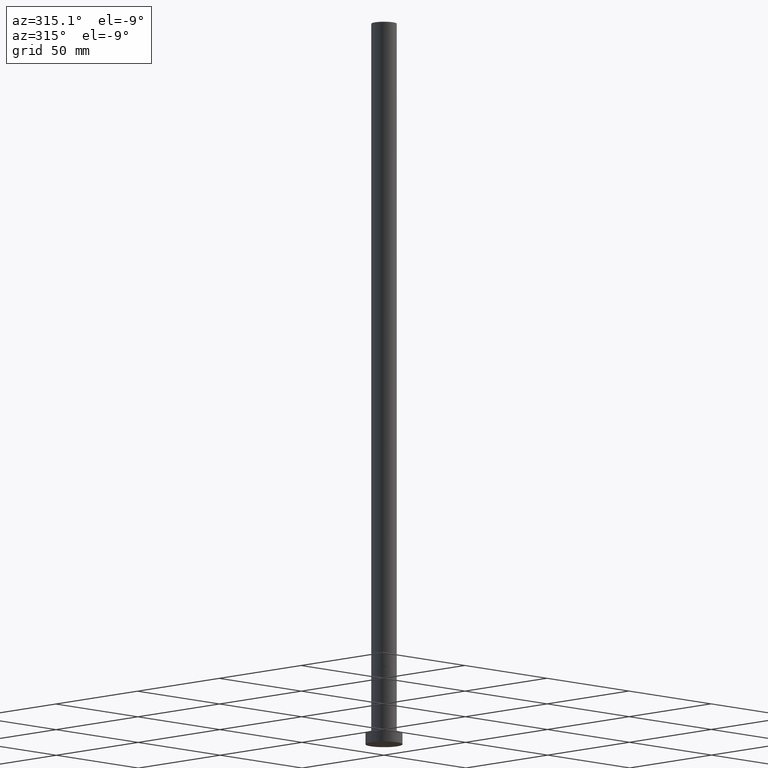
[diagram: clean part render]
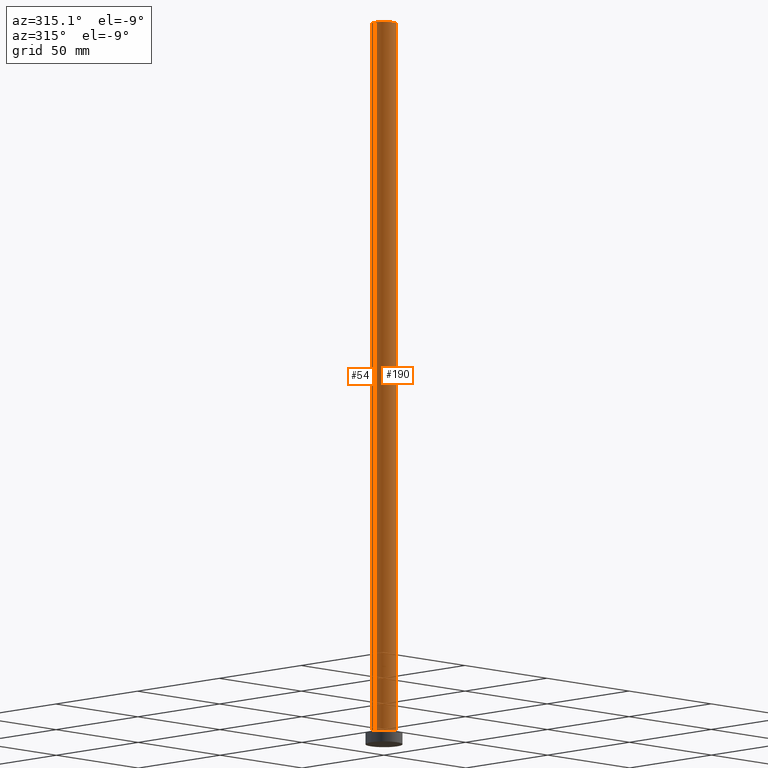
[diagram: same view with one multi-face feature highlighted, each face labeled with its STEP entity id]
A machine part, auxiliary view. The highlighted faces form ONE feature: a constant-radius fillet chain: 2 tangent blend faces with common blend radius 5.5 mm. The faces share edges in the B-rep.
Their STEP definitions:
[1] entity #54 (Cylinder):
#2 = CIRCLE ( 'NONE', #41, 5.500000000000000000 ) ;
#17 = ORIENTED_EDGE ( 'NONE', *, *, #199, .F. ) ;
#19 = LINE ( 'NONE', #161, #21 ) ;
#20 = CIRCLE ( 'NONE', #143, 5.500000000000000000 ) ;
#21 = VECTOR ( 'NONE', #131, 1000.000000000000000 ) ;
#41 = AXIS2_PLACEMENT_3D ( 'NONE', #59, #140, #210 ) ;
#42 = LINE ( 'NONE', #89, #128 ) ;
#44 = CARTESIAN_POINT ( 'NONE',  ( -5.500000000000000000, 0.000000000000000000, 315.0000000000000000 ) ) ;
#51 = EDGE_LOOP ( 'NONE', ( #100, #82, #249, #17 ) ) ;
#54 = ADVANCED_FACE ( 'NONE', ( #97 ), #197, .T. ) ;
#59 = CARTESIAN_POINT ( 'NONE',  ( 0.000000000000000000, 0.000000000000000000, 5.000000000000000000 ) ) ;
#82 = ORIENTED_EDGE ( 'NONE', *, *, #227, .T. ) ;
#89 = CARTESIAN_POINT ( 'NONE',  ( 5.500000000000000000, 6.735557395310442023E-16, 315.0000000000000000 ) ) ;
#97 = FACE_OUTER_BOUND ( 'NONE', #51, .T. ) ;
#100 = ORIENTED_EDGE ( 'NONE', *, *, #184, .F. ) ;
#103 = CARTESIAN_POINT ( 'NONE',  ( 0.000000000000000000, 0.000000000000000000, 315.0000000000000000 ) ) ;
#113 = CARTESIAN_POINT ( 'NONE',  ( 5.500000000000000000, 6.735557395310442023E-16, 315.0000000000000000 ) ) ;
#122 = DIRECTION ( 'NONE',  ( -1.000000000000000000, 0.000000000000000000, 0.000000000000000000 ) ) ;
#126 = CARTESIAN_POINT ( 'NONE',  ( 5.500000000000000000, 6.735557395310442023E-16, 5.000000000000000000 ) ) ;
#128 = VECTOR ( 'NONE', #222, 1000.000000000000000 ) ;
#131 = DIRECTION ( 'NONE',  ( -0.000000000000000000, -0.000000000000000000, -1.000000000000000000 ) ) ;
#140 = DIRECTION ( 'NONE',  ( 0.000000000000000000, 0.000000000000000000, 1.000000000000000000 ) ) ;
#142 = EDGE_CURVE ( 'NONE', #148, #240, #2, .T. ) ;
#143 = AXIS2_PLACEMENT_3D ( 'NONE', #103, #177, #178 ) ;
#148 = VERTEX_POINT ( 'NONE', #126 ) ;
#156 = CARTESIAN_POINT ( 'NONE',  ( 0.000000000000000000, 0.000000000000000000, 315.0000000000000000 ) ) ;
#161 = CARTESIAN_POINT ( 'NONE',  ( -5.500000000000000000, 0.000000000000000000, 315.0000000000000000 ) ) ;
#175 = DIRECTION ( 'NONE',  ( -0.000000000000000000, -0.000000000000000000, -1.000000000000000000 ) ) ;
#177 = DIRECTION ( 'NONE',  ( 0.000000000000000000, 0.000000000000000000, 1.000000000000000000 ) ) ;
#178 = DIRECTION ( 'NONE',  ( 1.000000000000000000, 0.000000000000000000, 0.000000000000000000 ) ) ;
#184 = EDGE_CURVE ( 'NONE', #202, #231, #20, .T. ) ;
#185 = AXIS2_PLACEMENT_3D ( 'NONE', #156, #175, #122 ) ;
#197 = CYLINDRICAL_SURFACE ( 'NONE', #185, 5.500000000000000000 ) ;
#199 = EDGE_CURVE ( 'NONE', #231, #240, #19, .T. ) ;
#202 = VERTEX_POINT ( 'NONE', #113 ) ;
#210 = DIRECTION ( 'NONE',  ( 1.000000000000000000, 0.000000000000000000, 0.000000000000000000 ) ) ;
#222 = DIRECTION ( 'NONE',  ( -0.000000000000000000, -0.000000000000000000, -1.000000000000000000 ) ) ;
#227 = EDGE_CURVE ( 'NONE', #202, #148, #42, .T. ) ;
#231 = VERTEX_POINT ( 'NONE', #44 ) ;
#240 = VERTEX_POINT ( 'NONE', #246 ) ;
#246 = CARTESIAN_POINT ( 'NONE',  ( -5.500000000000000000, 0.000000000000000000, 5.000000000000000000 ) ) ;
#249 = ORIENTED_EDGE ( 'NONE', *, *, #142, .T. ) ;
[2] entity #190 (Cylinder):
#15 = DIRECTION ( 'NONE',  ( 1.000000000000000000, 0.000000000000000000, 0.000000000000000000 ) ) ;
#19 = LINE ( 'NONE', #161, #21 ) ;
#21 = VECTOR ( 'NONE', #131, 1000.000000000000000 ) ;
#22 = DIRECTION ( 'NONE',  ( -1.000000000000000000, 0.000000000000000000, 0.000000000000000000 ) ) ;
#24 = EDGE_CURVE ( 'NONE', #231, #202, #130, .T. ) ;
#25 = ORIENTED_EDGE ( 'NONE', *, *, #57, .T. ) ;
#26 = CARTESIAN_POINT ( 'NONE',  ( 0.000000000000000000, 0.000000000000000000, 315.0000000000000000 ) ) ;
#37 = AXIS2_PLACEMENT_3D ( 'NONE', #26, #129, #47 ) ;
#42 = LINE ( 'NONE', #89, #128 ) ;
#44 = CARTESIAN_POINT ( 'NONE',  ( -5.500000000000000000, 0.000000000000000000, 315.0000000000000000 ) ) ;
#47 = DIRECTION ( 'NONE',  ( 1.000000000000000000, 0.000000000000000000, 0.000000000000000000 ) ) ;
#57 = EDGE_CURVE ( 'NONE', #240, #148, #203, .T. ) ;
#68 = CYLINDRICAL_SURFACE ( 'NONE', #213, 5.500000000000000000 ) ;
#71 = FACE_OUTER_BOUND ( 'NONE', #114, .T. ) ;
#72 = ORIENTED_EDGE ( 'NONE', *, *, #24, .F. ) ;
#89 = CARTESIAN_POINT ( 'NONE',  ( 5.500000000000000000, 6.735557395310442023E-16, 315.0000000000000000 ) ) ;
#106 = AXIS2_PLACEMENT_3D ( 'NONE', #252, #195, #15 ) ;
#113 = CARTESIAN_POINT ( 'NONE',  ( 5.500000000000000000, 6.735557395310442023E-16, 315.0000000000000000 ) ) ;
#114 = EDGE_LOOP ( 'NONE', ( #151, #72, #170, #25 ) ) ;
#126 = CARTESIAN_POINT ( 'NONE',  ( 5.500000000000000000, 6.735557395310442023E-16, 5.000000000000000000 ) ) ;
#128 = VECTOR ( 'NONE', #222, 1000.000000000000000 ) ;
#129 = DIRECTION ( 'NONE',  ( 0.000000000000000000, 0.000000000000000000, 1.000000000000000000 ) ) ;
#130 = CIRCLE ( 'NONE', #37, 5.500000000000000000 ) ;
#131 = DIRECTION ( 'NONE',  ( -0.000000000000000000, -0.000000000000000000, -1.000000000000000000 ) ) ;
#148 = VERTEX_POINT ( 'NONE', #126 ) ;
#151 = ORIENTED_EDGE ( 'NONE', *, *, #227, .F. ) ;
#161 = CARTESIAN_POINT ( 'NONE',  ( -5.500000000000000000, 0.000000000000000000, 315.0000000000000000 ) ) ;
#165 = CARTESIAN_POINT ( 'NONE',  ( 0.000000000000000000, 0.000000000000000000, 315.0000000000000000 ) ) ;
#166 = DIRECTION ( 'NONE',  ( -0.000000000000000000, -0.000000000000000000, -1.000000000000000000 ) ) ;
#170 = ORIENTED_EDGE ( 'NONE', *, *, #199, .T. ) ;
#190 = ADVANCED_FACE ( 'NONE', ( #71 ), #68, .T. ) ;
#195 = DIRECTION ( 'NONE',  ( 0.000000000000000000, 0.000000000000000000, 1.000000000000000000 ) ) ;
#199 = EDGE_CURVE ( 'NONE', #231, #240, #19, .T. ) ;
#202 = VERTEX_POINT ( 'NONE', #113 ) ;
#203 = CIRCLE ( 'NONE', #106, 5.500000000000000000 ) ;
#213 = AXIS2_PLACEMENT_3D ( 'NONE', #165, #166, #22 ) ;
#222 = DIRECTION ( 'NONE',  ( -0.000000000000000000, -0.000000000000000000, -1.000000000000000000 ) ) ;
#227 = EDGE_CURVE ( 'NONE', #202, #148, #42, .T. ) ;
#231 = VERTEX_POINT ( 'NONE', #44 ) ;
#240 = VERTEX_POINT ( 'NONE', #246 ) ;
#246 = CARTESIAN_POINT ( 'NONE',  ( -5.500000000000000000, 0.000000000000000000, 5.000000000000000000 ) ) ;
#252 = CARTESIAN_POINT ( 'NONE',  ( 0.000000000000000000, 0.000000000000000000, 5.000000000000000000 ) ) ;